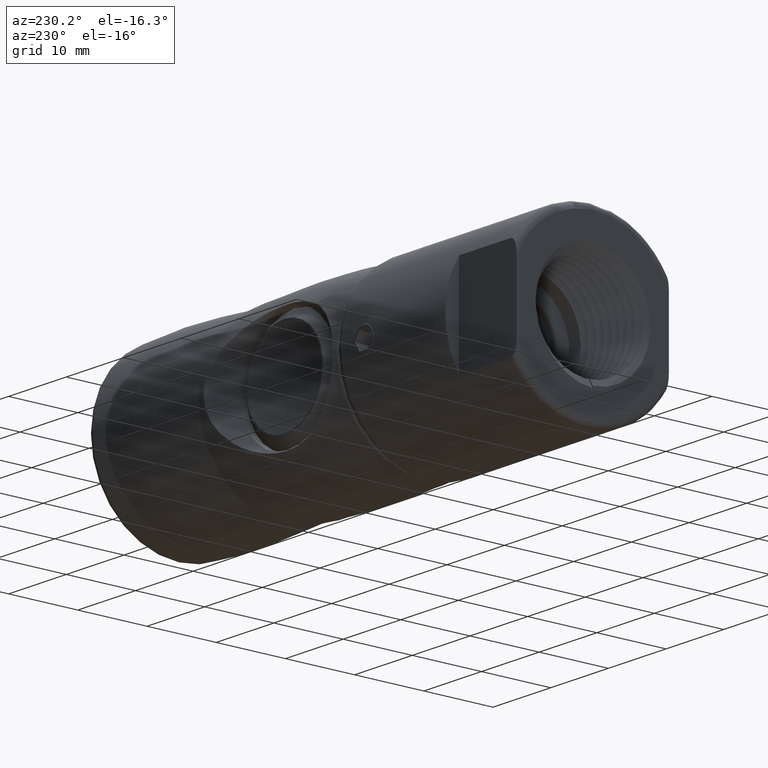
[diagram: clean part render]
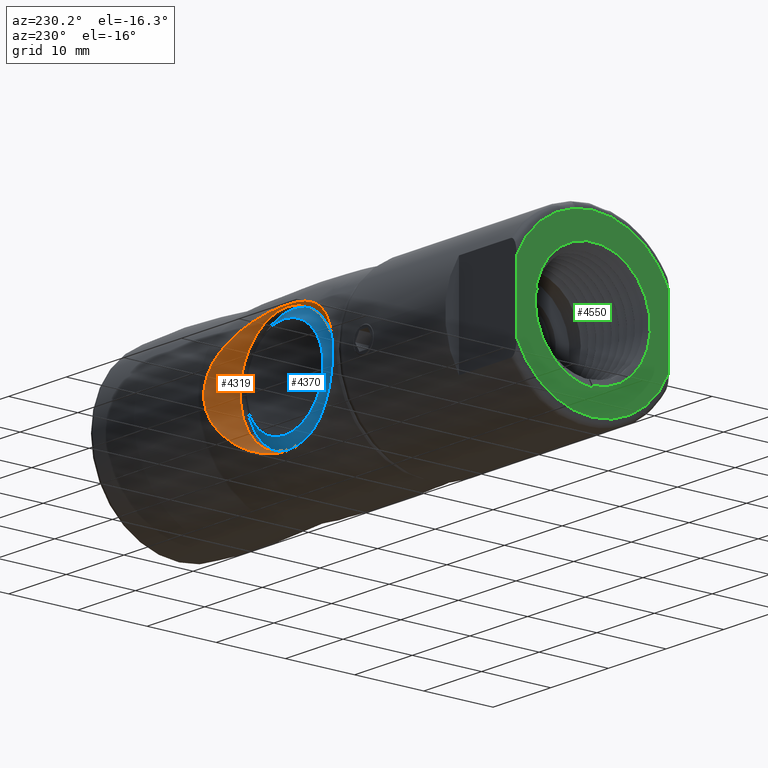
[diagram: same view with three faces highlighted in distinct colors, each labeled with its STEP entity id]
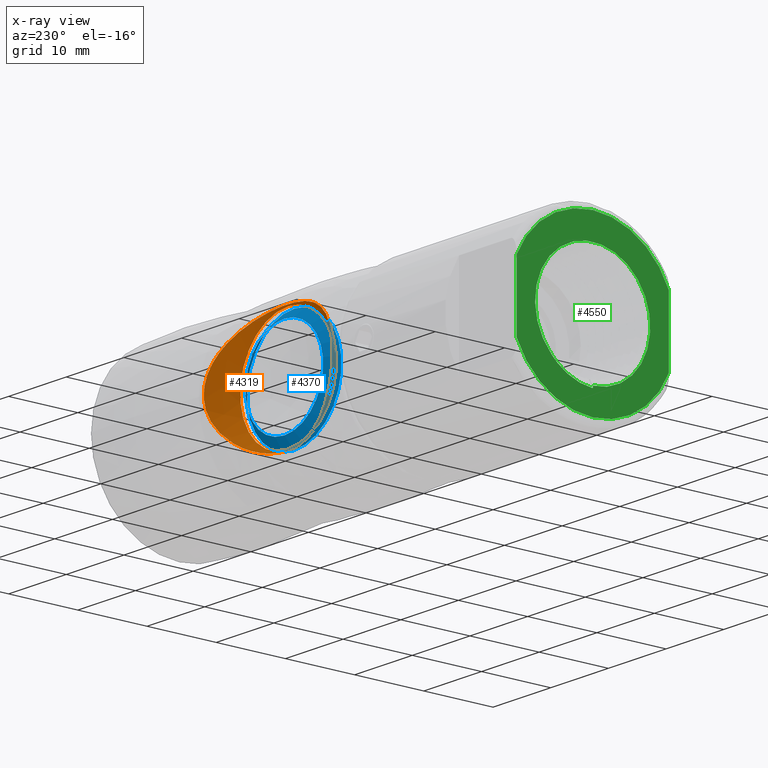
[diagram: x-ray of the same camera — body ghosted, the three highlighted faces saturated]
A machine part, auxiliary view with three faces highlighted in distinct colors.
The next image is the same camera in x-ray (body ghosted, the three faces saturated) — at least one of them is partly hidden behind the body in this view.
Their STEP definitions:

[orange] entity #4319 — the highlighted conical surface has half-angle 45 deg.
#228=CONICAL_SURFACE('',#4659,8.3,0.78539816339745);
#296=B_SPLINE_CURVE_WITH_KNOTS('',3,(#7203,#7204,#7205,#7206,#7207,#7208,
#7209,#7210,#7211,#7212,#7213,#7214,#7215,#7216,#7217,#7218,#7219,#7220,
#7221,#7222,#7223,#7224,#7225,#7226,#7227,#7228,#7229,#7230,#7231,#7232,
#7233,#7234,#7235,#7236,#7237,#7238,#7239,#7240,#7241,#7242,#7243,#7244),
 .UNSPECIFIED.,.T.,.F.,(4,2,2,2,2,2,2,2,2,2,2,2,2,2,2,2,2,2,2,2,4),(-6.4365425934076,
-6.36338793106719,-6.02509476067915,-5.60792981919906,-5.26225060308765,
-5.00178297149746,-4.76160747846728,-4.49718883712005,-4.14096588441205,
-3.69954047262586,-3.3599658620424,-3.05280214298332,-2.69347053625062,
-2.263241368073,-1.95127223405728,-1.69838791326535,-1.44492709416327,-1.14274797766722,
-0.728103514929918,-0.324348707131836,0.),.UNSPECIFIED.);
#451=LINE('',#7202,#637);
#637=VECTOR('',#5270,8.3);
#947=FACE_OUTER_BOUND('',#1206,.T.);
#1206=EDGE_LOOP('',(#3025,#3026,#3027,#3028,#3029));
#1508=CIRCLE('',#4660,8.3);
#1509=CIRCLE('',#4661,8.3);
#1833=VERTEX_POINT('',#7198);
#1834=VERTEX_POINT('',#7199);
#1835=VERTEX_POINT('',#7201);
#2340=EDGE_CURVE('',#1833,#1834,#1508,.T.);
#2341=EDGE_CURVE('',#1834,#1835,#451,.T.);
#2342=EDGE_CURVE('',#1835,#1835,#296,.T.);
#2343=EDGE_CURVE('',#1834,#1833,#1509,.T.);
#3025=ORIENTED_EDGE('',*,*,#2340,.T.);
#3026=ORIENTED_EDGE('',*,*,#2341,.T.);
#3027=ORIENTED_EDGE('',*,*,#2342,.F.);
#3028=ORIENTED_EDGE('',*,*,#2341,.F.);
#3029=ORIENTED_EDGE('',*,*,#2343,.T.);
#4319=ADVANCED_FACE('',(#947),#228,.F.);
#4659=AXIS2_PLACEMENT_3D('',#7197,#5266,#5267);
#4660=AXIS2_PLACEMENT_3D('',#7200,#5268,#5269);
#4661=AXIS2_PLACEMENT_3D('',#7245,#5271,#5272);
#5266=DIRECTION('center_axis',(0.,1.,0.));
#5267=DIRECTION('ref_axis',(0.,0.,1.));
#5268=DIRECTION('center_axis',(0.,-1.,0.));
#5269=DIRECTION('ref_axis',(0.,0.,-1.));
#5270=DIRECTION('',(-8.65956056235495E-17,0.707106781186546,-0.707106781186549));
#5271=DIRECTION('center_axis',(0.,-1.,0.));
#5272=DIRECTION('ref_axis',(0.,0.,-1.));
#7197=CARTESIAN_POINT('Origin',(21.8999999999997,9.7,0.));
#7198=CARTESIAN_POINT('',(21.8999999999997,9.7,8.3));
#7199=CARTESIAN_POINT('',(21.8999999999997,9.7,-8.3));
#7200=CARTESIAN_POINT('Origin',(21.8999999999997,9.7,0.));
#7201=CARTESIAN_POINT('',(21.8999999999803,9.86569691840204,-8.46569691840204));
#7202=CARTESIAN_POINT('',(21.8999999999997,9.7,-8.3));
#7203=CARTESIAN_POINT('Ctrl Pts',(21.8999999999983,9.86569691840205,-8.46569691840206));
#7204=CARTESIAN_POINT('Ctrl Pts',(22.1438488744663,9.86569691840203,-8.46569691840208));
#7205=CARTESIAN_POINT('Ctrl Pts',(22.3875440580483,9.87014335916579,-8.45960604266152));
#7206=CARTESIAN_POINT('Ctrl Pts',(23.7564128178991,9.91989341066989,-8.39109852349481));
#7207=CARTESIAN_POINT('Ctrl Pts',(24.8609749054643,10.0564196459532,-8.20601378381522));
#7208=CARTESIAN_POINT('Ctrl Pts',(27.2214618716749,10.5094132629155,-7.51307620672069));
#7209=CARTESIAN_POINT('Ctrl Pts',(28.4532296707382,10.8594884282016,-6.93933469857089));
#7210=CARTESIAN_POINT('Ctrl Pts',(30.4242175690682,11.5130689782467,-5.54277563390385));
#7211=CARTESIAN_POINT('Ctrl Pts',(31.2241446624366,11.8181853529517,-4.76914682576037));
#7212=CARTESIAN_POINT('Ctrl Pts',(32.3078212420636,12.2518041918391,-3.17639304619226));
#7213=CARTESIAN_POINT('Ctrl Pts',(32.666347006834,12.4034385518618,-2.42041809658236));
#7214=CARTESIAN_POINT('Ctrl Pts',(33.0682306642469,12.5746149929694,-0.857476314915626));
#7215=CARTESIAN_POINT('Ctrl Pts',(33.1264118051782,12.6000548454411,-0.0881182887450568));
#7216=CARTESIAN_POINT('Ctrl Pts',(32.9524245883256,12.5252621463353,1.53010625786936));
#7217=CARTESIAN_POINT('Ctrl Pts',(32.6953774504463,12.4143540414823,2.33466060004244));
#7218=CARTESIAN_POINT('Ctrl Pts',(31.7914988772217,12.0418009324452,4.07810329900275));
#7219=CARTESIAN_POINT('Ctrl Pts',(31.0553770137771,11.7481933257777,4.93971013933447));
#7220=CARTESIAN_POINT('Ctrl Pts',(29.1583776243522,11.0779474297464,6.53635160168724));
#7221=CARTESIAN_POINT('Ctrl Pts',(27.8876064109406,10.6788460118658,7.23451837437052));
#7222=CARTESIAN_POINT('Ctrl Pts',(25.4141021383385,10.1431235300639,8.08280287422139));
#7223=CARTESIAN_POINT('Ctrl Pts',(24.2821590490162,9.97344506425078,8.31662876497917));
#7224=CARTESIAN_POINT('Ctrl Pts',(22.083667131875,9.83957389422266,8.502156277112));
#7225=CARTESIAN_POINT('Ctrl Pts',(21.0386060117244,9.85814276949846,8.47777746149684));
#7226=CARTESIAN_POINT('Ctrl Pts',(18.7988555921226,10.0673221094835,8.18388005976164));
#7227=CARTESIAN_POINT('Ctrl Pts',(17.6269208027855,10.285096001342,7.87466100036825));
#7228=CARTESIAN_POINT('Ctrl Pts',(15.2282178245174,10.8813526102023,6.87620364483442));
#7229=CARTESIAN_POINT('Ctrl Pts',(14.0570706015574,11.2741861732648,6.13163239784394));
#7230=CARTESIAN_POINT('Ctrl Pts',(12.4229703941683,11.875428195364,4.55702465134329));
#7231=CARTESIAN_POINT('Ctrl Pts',(11.8339099112481,12.1130024601625,3.78721563494719));
#7232=CARTESIAN_POINT('Ctrl Pts',(11.0671693734498,12.4305495728899,2.21690608640243));
#7233=CARTESIAN_POINT('Ctrl Pts',(10.8399645689778,12.5285329773641,1.46418704350958));
#7234=CARTESIAN_POINT('Ctrl Pts',(10.6717463502913,12.600847491556,-0.110154096422527));
#7235=CARTESIAN_POINT('Ctrl Pts',(10.7354383150512,12.5729963344004,-0.893833305467401));
#7236=CARTESIAN_POINT('Ctrl Pts',(11.1765994226201,12.3852166105428,-2.5595802591946));
#7237=CARTESIAN_POINT('Ctrl Pts',(11.6002438251094,12.2063104238005,-3.3888015745985));
#7238=CARTESIAN_POINT('Ctrl Pts',(12.8934364102802,11.6953069454059,-5.13493374892315));
#7239=CARTESIAN_POINT('Ctrl Pts',(13.8880734346283,11.322850834949,-5.99451377604437));
#7240=CARTESIAN_POINT('Ctrl Pts',(16.1591855735636,10.6297296698714,-7.33532499529577));
#7241=CARTESIAN_POINT('Ctrl Pts',(17.4024976974128,10.3183676044002,-7.81318186761682));
#7242=CARTESIAN_POINT('Ctrl Pts',(19.7461814240754,9.9550398204678,-8.34686287583011));
#7243=CARTESIAN_POINT('Ctrl Pts',(20.8188376428921,9.86569691840215,-8.46569691840196));
#7244=CARTESIAN_POINT('Ctrl Pts',(21.8999999999983,9.86569691840206,-8.46569691840206));
#7245=CARTESIAN_POINT('Origin',(21.8999999999997,9.7,0.));

[blue] entity #4370 — the highlighted conical surface has half-angle 45 deg.
#235=CONICAL_SURFACE('',#4780,8.25,0.785398163397449);
#477=LINE('',#9515,#663);
#663=VECTOR('',#5536,8.25);
#998=FACE_OUTER_BOUND('',#1271,.T.);
#1271=EDGE_LOOP('',(#3294,#3295,#3296,#3297,#3298,#3299));
#1578=CIRCLE('',#4773,8.19142135623731);
#1579=CIRCLE('',#4774,8.19142135623731);
#1584=CIRCLE('',#4781,6.74999999999999);
#1585=CIRCLE('',#4782,6.74999999999999);
#1909=VERTEX_POINT('',#9501);
#1910=VERTEX_POINT('',#9502);
#1914=VERTEX_POINT('',#9514);
#1915=VERTEX_POINT('',#9516);
#2452=EDGE_CURVE('',#1909,#1910,#1578,.T.);
#2453=EDGE_CURVE('',#1910,#1909,#1579,.T.);
#2458=EDGE_CURVE('',#1909,#1914,#477,.T.);
#2459=EDGE_CURVE('',#1915,#1914,#1584,.T.);
#2460=EDGE_CURVE('',#1914,#1915,#1585,.T.);
#3294=ORIENTED_EDGE('',*,*,#2452,.T.);
#3295=ORIENTED_EDGE('',*,*,#2453,.T.);
#3296=ORIENTED_EDGE('',*,*,#2458,.T.);
#3297=ORIENTED_EDGE('',*,*,#2459,.F.);
#3298=ORIENTED_EDGE('',*,*,#2460,.F.);
#3299=ORIENTED_EDGE('',*,*,#2458,.F.);
#4370=ADVANCED_FACE('',(#998),#235,.T.);
#4773=AXIS2_PLACEMENT_3D('',#9503,#5520,#5521);
#4774=AXIS2_PLACEMENT_3D('',#9504,#5522,#5523);
#4780=AXIS2_PLACEMENT_3D('',#9513,#5534,#5535);
#4781=AXIS2_PLACEMENT_3D('',#9517,#5537,#5538);
#4782=AXIS2_PLACEMENT_3D('',#9518,#5539,#5540);
#5520=DIRECTION('center_axis',(-8.37302466146294E-17,1.,-5.43376848709961E-17));
#5521=DIRECTION('ref_axis',(2.77555756156289E-17,-5.43376848709961E-17,
-1.));
#5522=DIRECTION('center_axis',(-8.37302466146294E-17,1.,-5.43376848709961E-17));
#5523=DIRECTION('ref_axis',(2.77555756156289E-17,-5.43376848709961E-17,
-1.));
#5534=DIRECTION('center_axis',(8.37302466146294E-17,-1.,5.43376848709961E-17));
#5535=DIRECTION('ref_axis',(2.77555756156289E-17,-5.43376848709961E-17,
-1.));
#5536=DIRECTION('',(4.70155361854703E-17,0.707106781186547,-0.707106781186548));
#5537=DIRECTION('center_axis',(-8.37302466146294E-17,1.,-5.43376848709961E-17));
#5538=DIRECTION('ref_axis',(2.77555756156289E-17,-5.43376848709961E-17,
-1.));
#5539=DIRECTION('center_axis',(-8.37302466146294E-17,1.,-5.43376848709961E-17));
#5540=DIRECTION('ref_axis',(2.77555756156289E-17,-5.43376848709961E-17,
-1.));
#9501=CARTESIAN_POINT('',(21.8999999999997,8.80679284538654,8.19142135623731));
#9502=CARTESIAN_POINT('',(21.8999999999997,8.80679284538654,-8.19142135623731));
#9503=CARTESIAN_POINT('Origin',(21.8999999999997,8.80679284538654,-1.24135383240065E-15));
#9504=CARTESIAN_POINT('Origin',(21.8999999999997,8.80679284538654,-1.24135383240065E-15));
#9513=CARTESIAN_POINT('Origin',(21.8999999999997,8.74821420162385,-1.23817080451571E-15));
#9514=CARTESIAN_POINT('',(21.8999999999997,10.2482142016239,6.74999999999999));
#9515=CARTESIAN_POINT('',(21.8999999999997,8.74821420162385,8.25));
#9516=CARTESIAN_POINT('',(21.8999999999997,10.2482142016239,-6.74999999999999));
#9517=CARTESIAN_POINT('Origin',(21.8999999999997,10.2482142016239,-1.3196773318222E-15));
#9518=CARTESIAN_POINT('Origin',(21.8999999999997,10.2482142016239,-1.3196773318222E-15));

[green] entity #4550 — the highlighted planar face has unit normal (1, 0, -0).
#165=PLANE('',#5162);
#224=FACE_BOUND('',#1473,.T.);
#433=B_SPLINE_CURVE_WITH_KNOTS('',3,(#16571,#16572,#16573,#16574,#16575,
#16576,#16577,#16578),.UNSPECIFIED.,.F.,.F.,(4,2,2,4),(-0.369871048801266,
-0.197783151949598,-0.113296727630511,-9.99994957562311E-7),
 .UNSPECIFIED.);
#617=LINE('',#16567,#803);
#618=LINE('',#16568,#804);
#619=LINE('',#16570,#805);
#803=VECTOR('',#6442,1000.);
#804=VECTOR('',#6443,1000.);
#805=VECTOR('',#6444,1000.);
#1178=FACE_OUTER_BOUND('',#1472,.T.);
#1472=EDGE_LOOP('',(#4218,#4219,#4220,#4221));
#1473=EDGE_LOOP('',(#4222,#4223,#4224));
#1764=CIRCLE('',#5123,12.);
#1790=CIRCLE('',#5161,8.32499999999925);
#1791=CIRCLE('',#5163,12.);
#2253=VERTEX_POINT('',#16356);
#2254=VERTEX_POINT('',#16369);
#2278=VERTEX_POINT('',#16525);
#2279=VERTEX_POINT('',#16527);
#2280=VERTEX_POINT('',#16564);
#2281=VERTEX_POINT('',#16565);
#2282=VERTEX_POINT('',#16569);
#2896=EDGE_CURVE('',#2254,#2253,#1764,.T.);
#2936=EDGE_CURVE('',#2278,#2279,#1790,.T.);
#2938=EDGE_CURVE('',#2280,#2281,#1791,.T.);
#2939=EDGE_CURVE('',#2281,#2254,#617,.T.);
#2940=EDGE_CURVE('',#2253,#2280,#618,.T.);
#2941=EDGE_CURVE('',#2282,#2278,#619,.T.);
#2942=EDGE_CURVE('',#2282,#2279,#433,.T.);
#4218=ORIENTED_EDGE('',*,*,#2938,.T.);
#4219=ORIENTED_EDGE('',*,*,#2939,.T.);
#4220=ORIENTED_EDGE('',*,*,#2896,.T.);
#4221=ORIENTED_EDGE('',*,*,#2940,.T.);
#4222=ORIENTED_EDGE('',*,*,#2941,.F.);
#4223=ORIENTED_EDGE('',*,*,#2942,.T.);
#4224=ORIENTED_EDGE('',*,*,#2936,.F.);
#4550=ADVANCED_FACE('',(#1178,#224),#165,.F.);
#5123=AXIS2_PLACEMENT_3D('',#16370,#6349,#6350);
#5161=AXIS2_PLACEMENT_3D('',#16528,#6436,#6437);
#5162=AXIS2_PLACEMENT_3D('',#16563,#6438,#6439);
#5163=AXIS2_PLACEMENT_3D('',#16566,#6440,#6441);
#6349=DIRECTION('center_axis',(-1.,-8.10829853279917E-18,4.14709251126948E-18));
#6350=DIRECTION('ref_axis',(-4.14709251126948E-18,-5.55111512312578E-17,
-1.));
#6436=DIRECTION('center_axis',(-1.,-8.10829853279917E-18,4.14709251126948E-18));
#6437=DIRECTION('ref_axis',(-4.14709251126948E-18,-5.55111512312578E-17,
-1.));
#6438=DIRECTION('center_axis',(1.,8.10829853279917E-18,-4.14709251126948E-18));
#6439=DIRECTION('ref_axis',(4.14709251126948E-18,5.55111512312578E-17,1.));
#6440=DIRECTION('center_axis',(-1.,-8.10829853279917E-18,4.14709251126948E-18));
#6441=DIRECTION('ref_axis',(-4.14709251126948E-18,-5.55111512312578E-17,
-1.));
#6442=DIRECTION('',(-4.14709251126948E-18,-5.55111512312578E-17,-1.));
#6443=DIRECTION('',(4.14709251126948E-18,5.55111512312578E-17,1.));
#6444=DIRECTION('',(4.14709251126948E-18,5.35073260049562E-17,1.));
#16356=CARTESIAN_POINT('',(-19.2999999999919,-11.,-4.79583152331274));
#16369=CARTESIAN_POINT('',(-19.2999999999919,11.,-4.79583152331275));
#16370=CARTESIAN_POINT('Origin',(-19.2999999999919,-2.35140657451175E-16,
1.20265682826815E-16));
#16525=CARTESIAN_POINT('',(-19.2999999999919,-2.4153126224192E-15,-8.32499999999925));
#16527=CARTESIAN_POINT('',(-19.2999999999919,5.93420227036804,-5.83873859787765));
#16528=CARTESIAN_POINT('Origin',(-19.2999999999919,-2.35140657451175E-16,
1.20265682826815E-16));
#16563=CARTESIAN_POINT('Origin',(-19.2999999999919,-8.32499999999925,5.82396016826994E-16));
#16564=CARTESIAN_POINT('',(-19.2999999999919,-11.,4.79583152331275));
#16565=CARTESIAN_POINT('',(-19.2999999999919,11.,4.79583152331275));
#16566=CARTESIAN_POINT('Origin',(-19.2999999999919,-2.35140657451175E-16,
1.20265682826815E-16));
#16567=CARTESIAN_POINT('',(-19.2999999999919,11.,-4.90356980717021E-16));
#16568=CARTESIAN_POINT('',(-19.2999999999919,-11.,7.30888346370651E-16));
#16569=CARTESIAN_POINT('',(-19.2999999999919,-7.10140735709034E-16,-8.6178758580222));
#16570=CARTESIAN_POINT('',(-19.2999999999919,-1.96986413342798E-15,1.36947527835774E-16));
#16571=CARTESIAN_POINT('Ctrl Pts',(-19.2999999999919,-8.32667268468867E-16,
-8.6178758580222));
#16572=CARTESIAN_POINT('Ctrl Pts',(-19.2999999999919,1.12421044734963,-8.57220365150142));
#16573=CARTESIAN_POINT('Ctrl Pts',(-19.2999999999919,2.22807687788689,-8.30295369252127));
#16574=CARTESIAN_POINT('Ctrl Pts',(-19.2999999999919,3.74724302624704,-7.59148915572868));
#16575=CARTESIAN_POINT('Ctrl Pts',(-19.2999999999919,4.22334416284915,-7.30881027552816));
#16576=CARTESIAN_POINT('Ctrl Pts',(-19.2999999999919,5.26546569726192,-6.5432062203894));
#16577=CARTESIAN_POINT('Ctrl Pts',(-19.2999999999919,5.68091594327103,-6.11886028955757));
#16578=CARTESIAN_POINT('Ctrl Pts',(-19.2999999999919,5.93420227036805,-5.83873859787765));